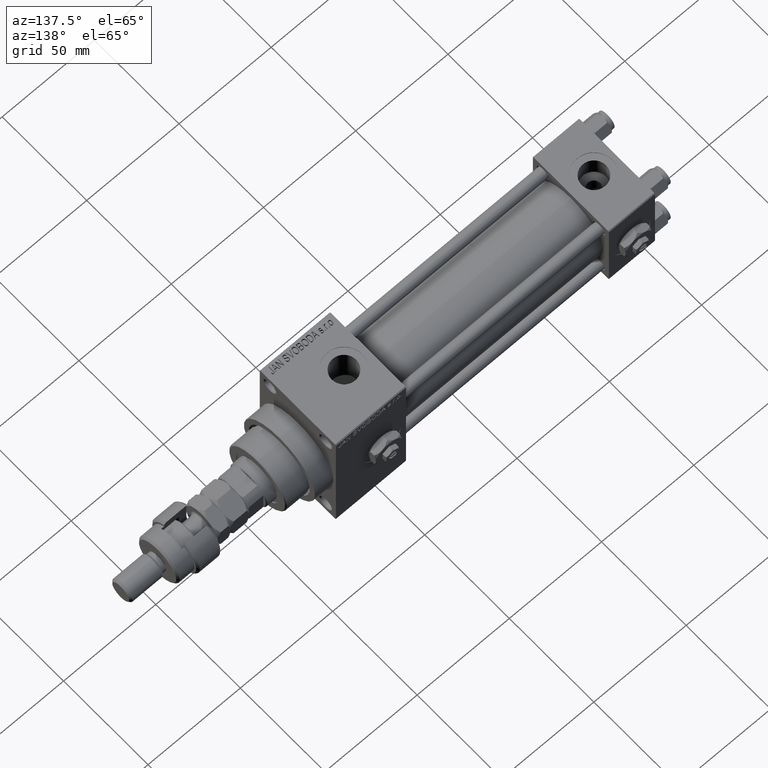
[diagram: clean part render]
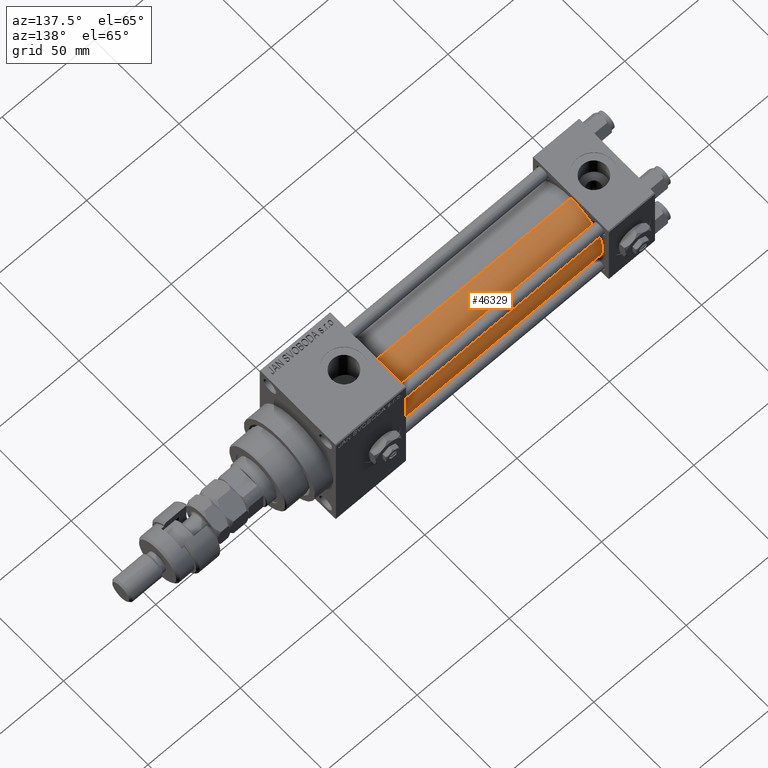
[diagram: same view with one face highlighted and labeled with its STEP entity id]
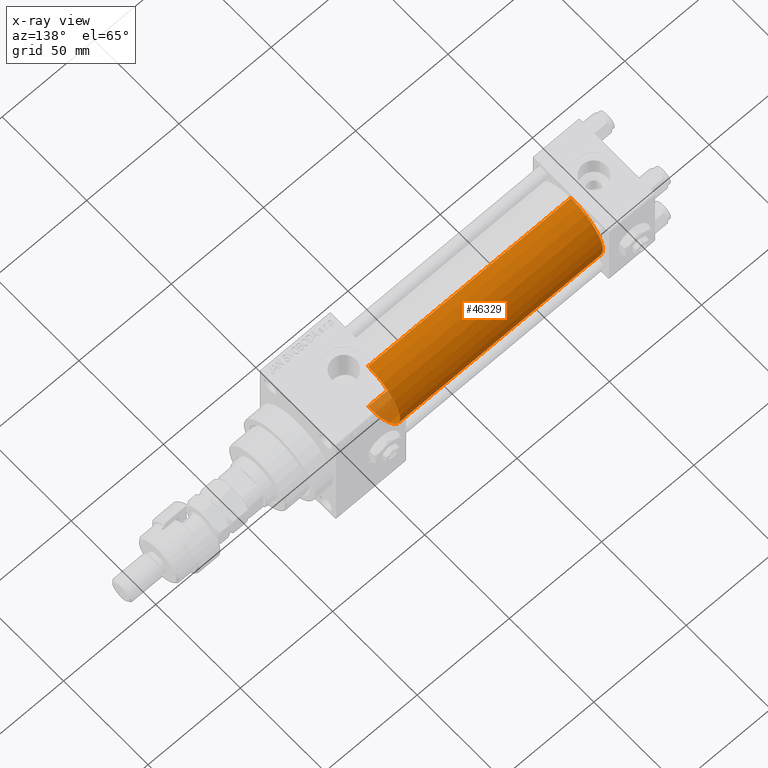
[diagram: x-ray of the same camera — body ghosted, the highlighted face saturated]
A machine part, auxiliary view. The second image highlights one B-rep face of the part: STEP entity #46329.
The next image is the same camera in x-ray: the body ghosted, the highlighted face saturated — about 3% of this face is hidden behind the body in this view.
In plain terms, the highlighted cylindrical surface (partial cylindrical patch) has radius 19 mm, axis along (-1, -0, -0).
Its self-contained STEP definition (entity closure, byte-faithful):
#4833 = DIRECTION ( 'NONE',  ( -1.000000000000000000, -0.000000000000000000, -0.000000000000000000 ) ) ;
#6626 = CARTESIAN_POINT ( 'NONE',  ( 24.99999999999999289, -2.602085213965210642E-15, 0.000000000000000000 ) ) ;
#7362 = VERTEX_POINT ( 'NONE', #14839 ) ;
#8622 = CARTESIAN_POINT ( 'NONE',  ( 135.0000000000000000, -2.752562955852396712E-16, -19.00000000000000000 ) ) ;
#10468 = ORIENTED_EDGE ( 'NONE', *, *, #36070, .F. ) ;
#10670 = CARTESIAN_POINT ( 'NONE',  ( 24.99999999999999289, -2.752562955852396712E-16, -19.00000000000000000 ) ) ;
#11299 = VERTEX_POINT ( 'NONE', #14327 ) ;
#13148 = EDGE_CURVE ( 'NONE', #11299, #43833, #48591, .T. ) ;
#14327 = CARTESIAN_POINT ( 'NONE',  ( 135.0000000000000000, -2.752562955852396712E-16, -19.00000000000000000 ) ) ;
#14839 = CARTESIAN_POINT ( 'NONE',  ( 24.99999999999999289, -2.602085213965210642E-15, 19.00000000000000000 ) ) ;
#16795 = DIRECTION ( 'NONE',  ( -1.000000000000000000, -0.000000000000000000, -0.000000000000000000 ) ) ;
#19048 = AXIS2_PLACEMENT_3D ( 'NONE', #33156, #33940, #41821 ) ;
#20104 = DIRECTION ( 'NONE',  ( 1.000000000000000000, 0.000000000000000000, 0.000000000000000000 ) ) ;
#20364 = AXIS2_PLACEMENT_3D ( 'NONE', #6626, #30840, #38703 ) ;
#20415 = ORIENTED_EDGE ( 'NONE', *, *, #25981, .F. ) ;
#20812 = FACE_OUTER_BOUND ( 'NONE', #46409, .T. ) ;
#20901 = DIRECTION ( 'NONE',  ( 0.000000000000000000, 0.000000000000000000, -1.000000000000000000 ) ) ;
#25413 = CIRCLE ( 'NONE', #20364, 19.00000000000000000 ) ;
#25981 = EDGE_CURVE ( 'NONE', #11299, #41304, #42434, .T. ) ;
#29900 = AXIS2_PLACEMENT_3D ( 'NONE', #40576, #20104, #20901 ) ;
#30519 = VECTOR ( 'NONE', #4833, 1000.000000000000000 ) ;
#30840 = DIRECTION ( 'NONE',  ( 1.000000000000000000, -0.000000000000000000, 0.000000000000000000 ) ) ;
#33156 = CARTESIAN_POINT ( 'NONE',  ( 135.0000000000000000, -2.602085213965210642E-15, 0.000000000000000000 ) ) ;
#33423 = CYLINDRICAL_SURFACE ( 'NONE', #19048, 19.00000000000000000 ) ;
#33940 = DIRECTION ( 'NONE',  ( -1.000000000000000000, -0.000000000000000000, -0.000000000000000000 ) ) ;
#34115 = EDGE_CURVE ( 'NONE', #43833, #7362, #25413, .T. ) ;
#36070 = EDGE_CURVE ( 'NONE', #41304, #7362, #36388, .T. ) ;
#36388 = LINE ( 'NONE', #36656, #30519 ) ;
#36437 = ORIENTED_EDGE ( 'NONE', *, *, #13148, .T. ) ;
#36656 = CARTESIAN_POINT ( 'NONE',  ( 135.0000000000000000, -2.602085213965210642E-15, 19.00000000000000000 ) ) ;
#38703 = DIRECTION ( 'NONE',  ( 0.000000000000000000, 0.000000000000000000, 1.000000000000000000 ) ) ;
#38931 = VECTOR ( 'NONE', #16795, 1000.000000000000000 ) ;
#39843 = CARTESIAN_POINT ( 'NONE',  ( 135.0000000000000000, -2.602085213965210642E-15, 19.00000000000000000 ) ) ;
#40576 = CARTESIAN_POINT ( 'NONE',  ( 135.0000000000000000, -2.602085213965210642E-15, 0.000000000000000000 ) ) ;
#41304 = VERTEX_POINT ( 'NONE', #39843 ) ;
#41821 = DIRECTION ( 'NONE',  ( 0.000000000000000000, 0.000000000000000000, 1.000000000000000000 ) ) ;
#42434 = CIRCLE ( 'NONE', #29900, 19.00000000000000000 ) ;
#43833 = VERTEX_POINT ( 'NONE', #10670 ) ;
#46135 = ORIENTED_EDGE ( 'NONE', *, *, #34115, .T. ) ;
#46329 = ADVANCED_FACE ( 'NONE', ( #20812 ), #33423, .T. ) ;
#46409 = EDGE_LOOP ( 'NONE', ( #20415, #36437, #46135, #10468 ) ) ;
#48591 = LINE ( 'NONE', #8622, #38931 ) ;